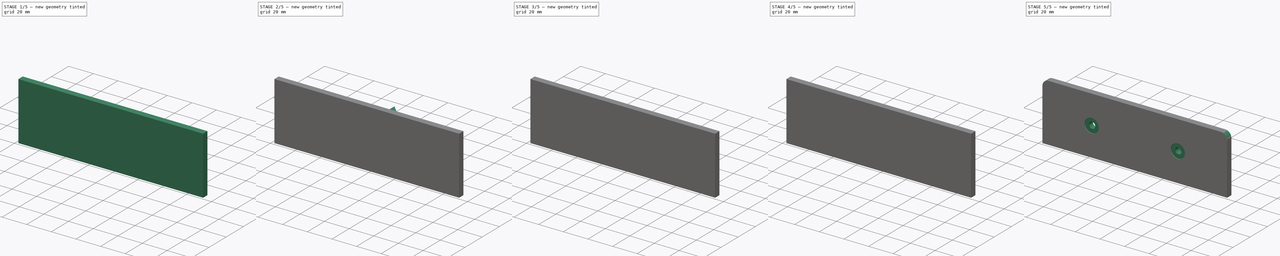
[diagram: build sequence overview — one tinted view per stage of 5, left to right]
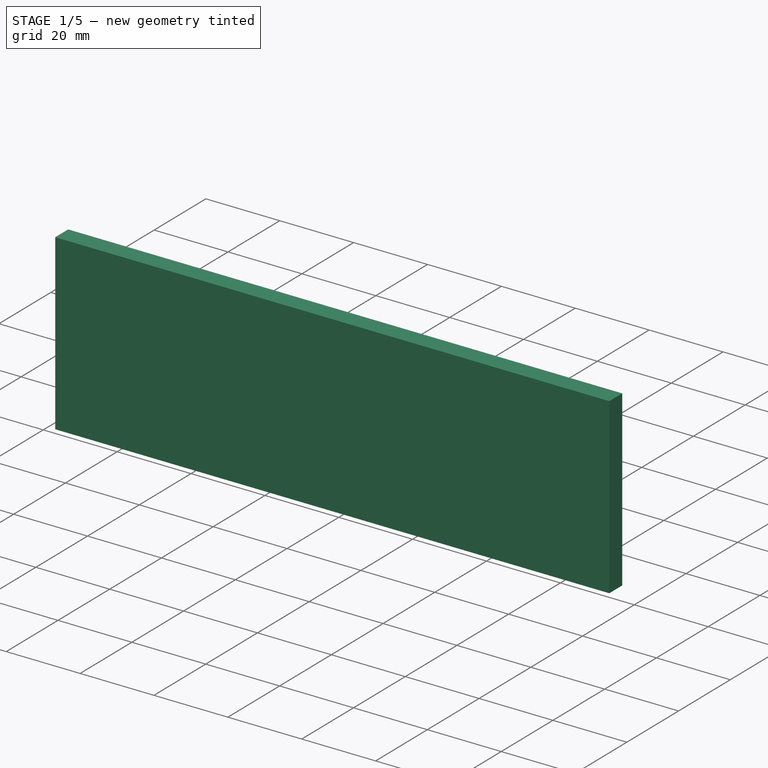
[diagram: stage 1 of 5 — iso view after this stage's code; geometry added in this stage tinted green]
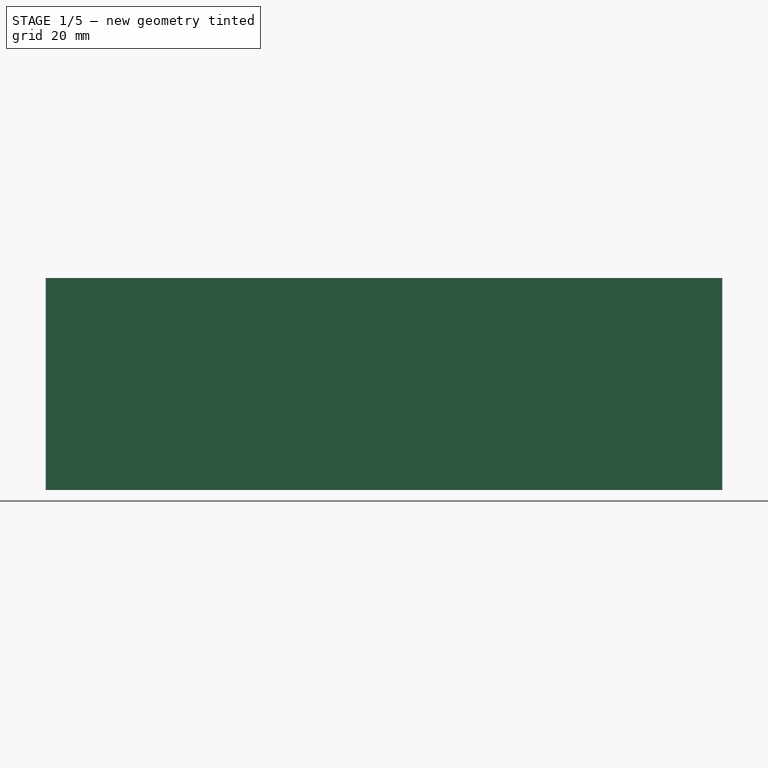
[diagram: stage 1 of 5 — front view after this stage's code; geometry added in this stage tinted green]
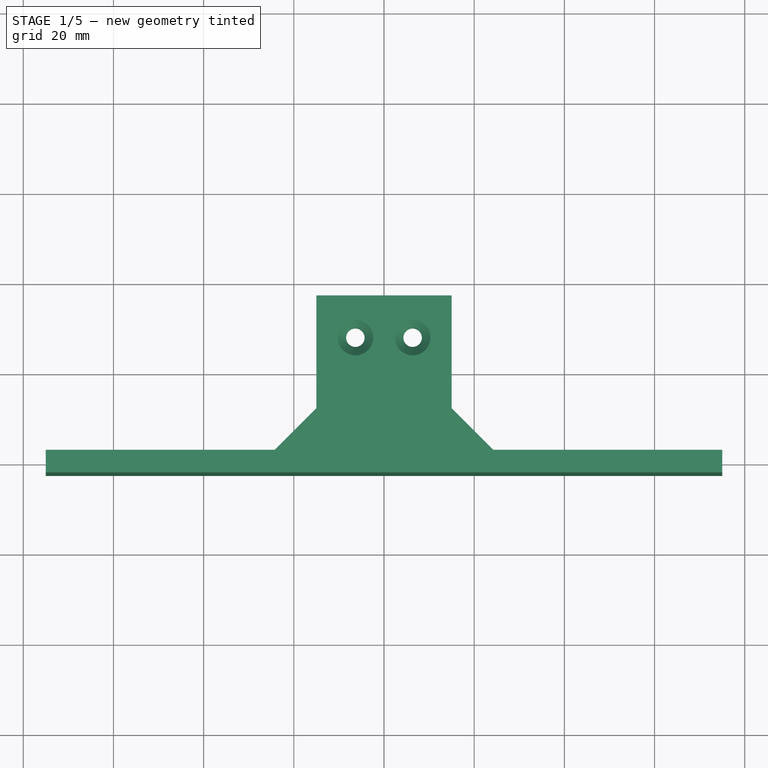
[diagram: stage 1 of 5 — top view after this stage's code; geometry added in this stage tinted green]
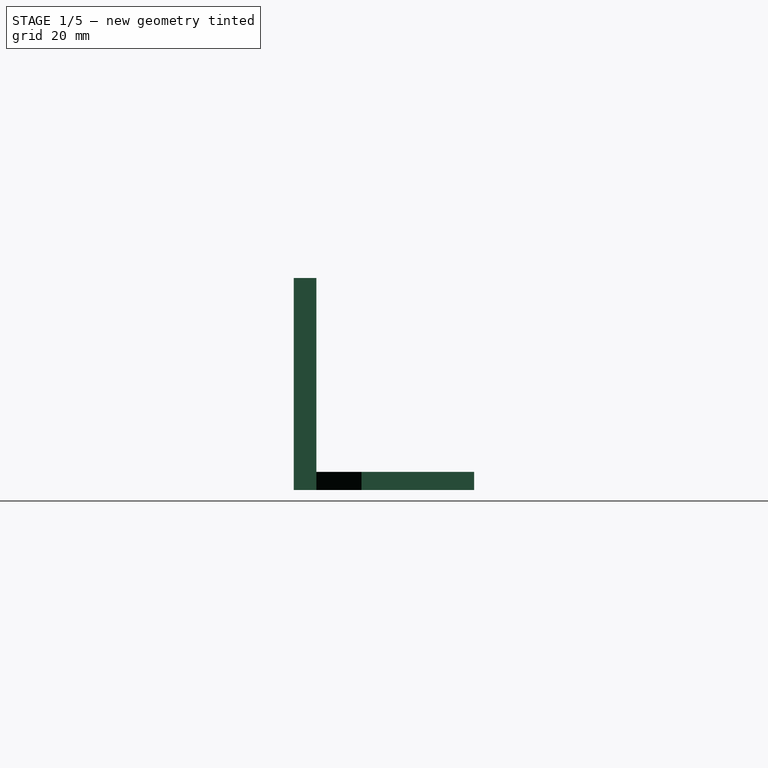
[diagram: stage 1 of 5 — right view after this stage's code; geometry added in this stage tinted green]
FCSTD DOCUMENT  (FreeCAD 0.18.3R)
Label: bumper
License: All rights reserved
LicenseURL: http://en.wikipedia.org/wiki/All_rights_reserved
objects: Sketcher::SketchObject×11, PartDesign::Pad×7, PartDesign::Pocket×7, PartDesign::Chamfer×7, PartDesign::Fillet×2, PartDesign::Body×1
note: 49 computed .brp shape members not serialized (recipe doc carries the construction recipe); baked Part::Feature solids carry a one-line shape summary decoded from their .brp

FEATURE [Sketcher::SketchObject] Sketch
  MapMode = 5
  Support = -> [XY_Plane]
  sketch-geometry (4):
    g0: LineSegment StartX=-75 StartY=2.5 StartZ=0 EndX=75 EndY=2.5 EndZ=0
    g1: LineSegment StartX=75 StartY=2.5 StartZ=0 EndX=75 EndY=-2.5 EndZ=0
    g2: LineSegment StartX=75 StartY=-2.5 StartZ=0 EndX=-75 EndY=-2.5 EndZ=0
    g3: LineSegment StartX=-75 StartY=-2.5 StartZ=0 EndX=-75 EndY=2.5 EndZ=0
  constraints (10):
    c: Coincident(g0,g1)
    c: Coincident(g1,g2)
    c: Coincident(g2,g3)
    c: Coincident(g3,g0)
    c: Horizontal(g2)
    c: Vertical(g3)
    c: Symmetric(g1,g0,g-1)
    c: Symmetric(g0,g0,g-2)
    c: DistanceY(g1,g1) = 5
    c: DistanceX(g0,g0) = 150
FEATURE [PartDesign::Pad] Pad
  Length = 47
  Length2 = 100
  Profile = -> Sketch
  Type = 0
FEATURE [Sketcher::SketchObject] Sketch001
  MapMode = 5
  Placement = pos=(0,2.5,0) rot=(0,0.707107,0.707107;3.14159rad)
  Support = -> [Pad]
  sketch-geometry (4):
    g0: LineSegment StartX=-15 StartY=4 StartZ=0 EndX=15 EndY=4 EndZ=0
    g1: LineSegment StartX=15 StartY=4 StartZ=0 EndX=15 EndY=0 EndZ=0
    g2: LineSegment StartX=15 StartY=0 StartZ=0 EndX=-15 EndY=2e-16 EndZ=0
    g3: LineSegment StartX=-15 StartY=2e-16 StartZ=0 EndX=-15 EndY=4 EndZ=0
  constraints (11):
    c: Coincident(g0,g1)
    c: Coincident(g1,g2)
    c: Coincident(g2,g3)
    c: Coincident(g3,g0)
    c: Horizontal(g0)
    c: Vertical(g1)
    c: Vertical(g3)
    c: Symmetric(g1,g2,g-2)
    c: PointOnObject(g1,g-1)
    c: DistanceX(g0,g0) = 30
    c: DistanceY(g1,g1) = 4
FEATURE [PartDesign::Pad] Pad001
  BaseFeature = -> Pad
  Length = 35
  Length2 = 100
  Profile = -> Sketch001
  Type = 0
FEATURE [Sketcher::SketchObject] Sketch002
  ExternalGeometry = -> [Pad001]
  MapMode = 5
  Placement = pos=(0,0,7e-16) rot=(1,0,0;3.14159rad)
  Support = -> [Pad001]
  sketch-geometry (2):
    g0: Circle CenterX=6.35 CenterY=-28.15 CenterZ=0 NormalX=0 NormalY=0 NormalZ=1 AngleXU=0 Radius=2.05
    g1: Circle CenterX=-6.35 CenterY=-28.15 CenterZ=0 NormalX=0 NormalY=0 NormalZ=1 AngleXU=0 Radius=2.05
  constraints (5):
    c: Radius(g1) = 2.05
    c: Equal(g0,g1)
    c: Symmetric(g0,g1,g-2)
    c: DistanceX(g1,g0) = 12.7
    c: Distance(g0,g-3) = 30.65
FEATURE [PartDesign::Pocket] Pocket
  BaseFeature = -> Pad001
  Length = 5
  Length2 = 100
  Profile = -> Sketch002
  Type = 1
FEATURE [PartDesign::Chamfer] Chamfer
  Base = -> Pocket [Edge18,Edge19]
  BaseFeature = -> Pocket
  Size = 1.9
FEATURE [PartDesign::Chamfer] Chamfer001
  Base = -> Chamfer [Edge13,Edge10]
  BaseFeature = -> Chamfer
  Size = 10
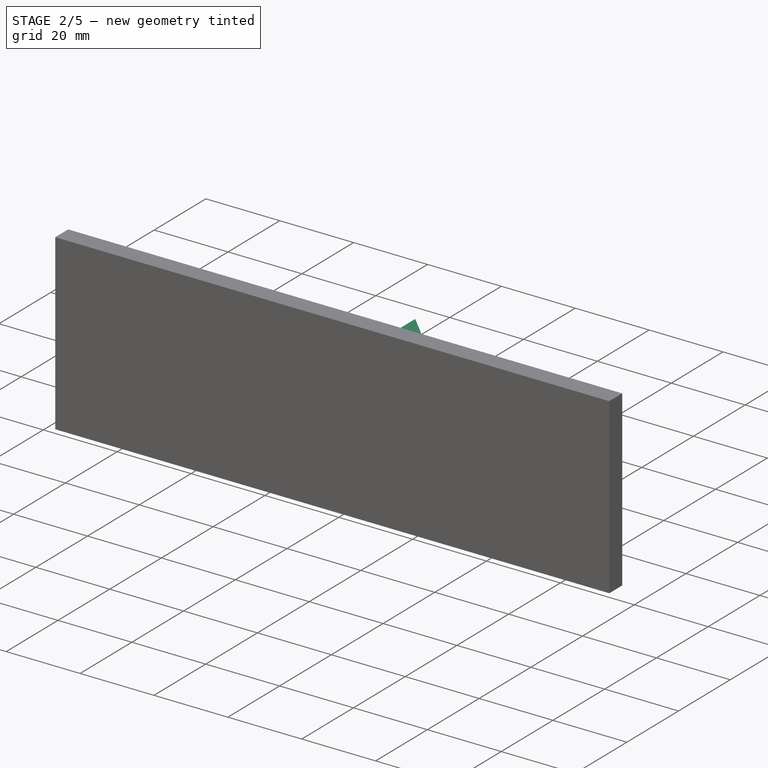
[diagram: stage 2 of 5 — iso view after this stage's code; geometry added in this stage tinted green]
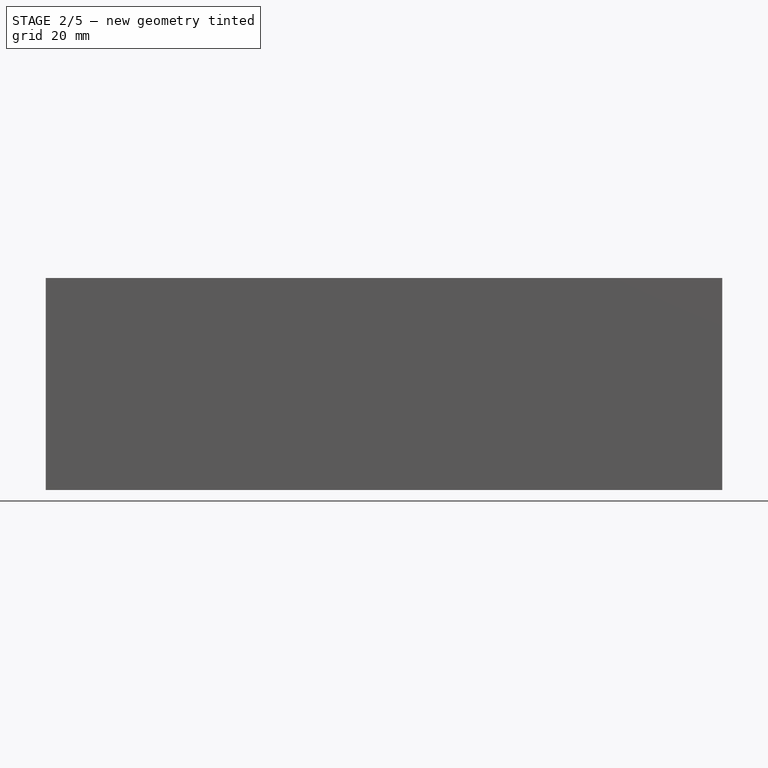
[diagram: stage 2 of 5 — front view after this stage's code; geometry added in this stage tinted green]
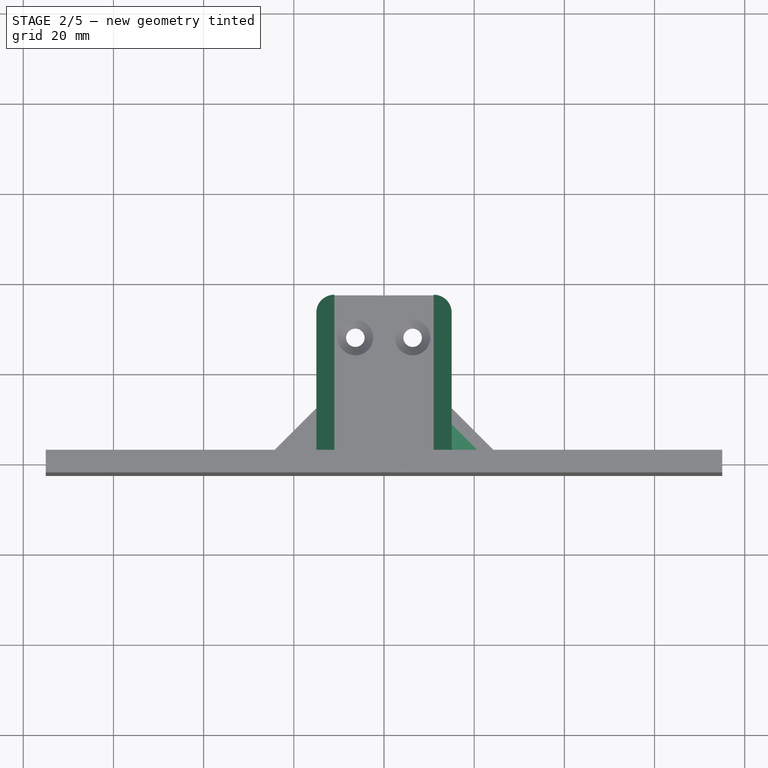
[diagram: stage 2 of 5 — top view after this stage's code; geometry added in this stage tinted green]
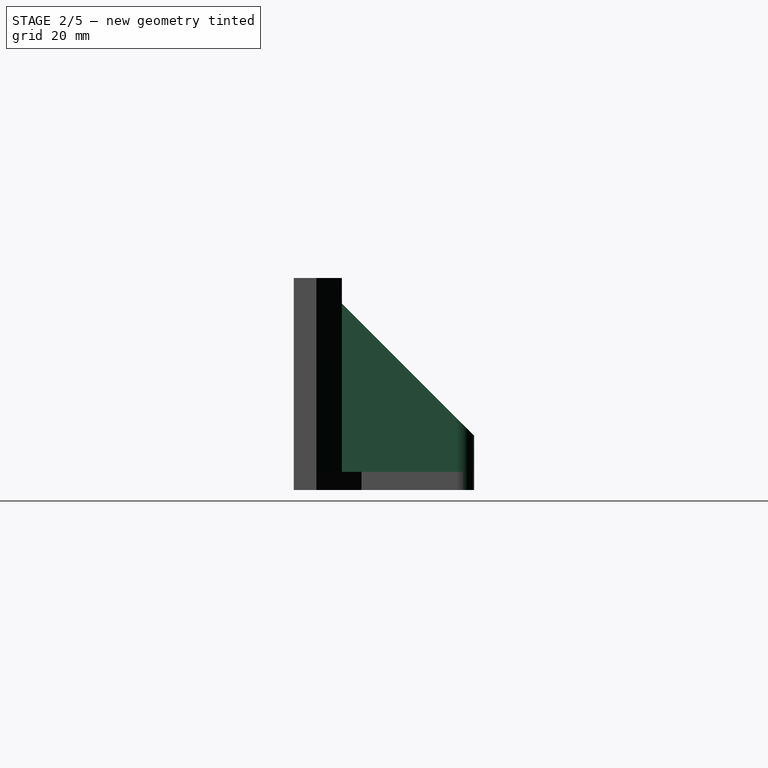
[diagram: stage 2 of 5 — right view after this stage's code; geometry added in this stage tinted green]
FEATURE [Sketcher::SketchObject] Sketch003
  ExternalGeometry = -> [Chamfer001]
  MapMode = 5
  Placement = pos=(0,9e-16,4) rot=(0,0,1;0rad)
  Support = -> [Chamfer001]
  sketch-geometry (8):
    g0: LineSegment StartX=-11 StartY=2.5 StartZ=0 EndX=-15 EndY=2.5 EndZ=0
    g1: LineSegment StartX=-15 StartY=2.5 StartZ=0 EndX=-15 EndY=37.5 EndZ=0
    g2: LineSegment StartX=-15 StartY=37.5 StartZ=0 EndX=-11 EndY=37.5 EndZ=0
    g3: LineSegment StartX=-11 StartY=37.5 StartZ=0 EndX=-11 EndY=2.5 EndZ=0
    g4: LineSegment StartX=15 StartY=2.5 StartZ=0 EndX=11 EndY=2.5 EndZ=0
    g5: LineSegment StartX=11 StartY=2.5 StartZ=0 EndX=11 EndY=37.5 EndZ=0
    g6: LineSegment StartX=11 StartY=37.5 StartZ=0 EndX=15 EndY=37.5 EndZ=0
    g7: LineSegment StartX=15 StartY=37.5 StartZ=0 EndX=15 EndY=2.5 EndZ=0
  constraints (22):
    c: Coincident(g0,g1)
    c: Coincident(g1,g2)
    c: Coincident(g2,g3)
    c: Coincident(g3,g0)
    c: Horizontal(g0)
    c: Horizontal(g2)
    c: Vertical(g1)
    c: Vertical(g3)
    c: Coincident(g4,g5)
    c: Coincident(g5,g6)
    c: Coincident(g6,g7)
    c: Coincident(g7,g4)
    c: Horizontal(g4)
    c: Horizontal(g6)
    c: Vertical(g5)
    c: Vertical(g7)
    c: Coincident(g1,g-3)
    c: Coincident(g6,g-4)
    c: Equal(g6,g2)
    c: Equal(g3,g5)
    c: DistanceX(g2,g2) = 4
    c: PointOnObject(g0,g-5)
FEATURE [PartDesign::Pad] Pad002
  BaseFeature = -> Chamfer001
  Length = 43
  Length2 = 100
  Profile = -> Sketch003
  Type = 0
FEATURE [PartDesign::Chamfer] Chamfer002
  Base = -> Pad002 [Edge38,Edge56]
  BaseFeature = -> Pad002
  Size = 34.99
FEATURE [PartDesign::Fillet] Fillet
  Base = -> Chamfer002 [Edge1,Edge14,Edge53,Edge27]
  BaseFeature = -> Chamfer002
  Radius = 3.99
FEATURE [Sketcher::SketchObject] Sketch004
  ExternalGeometry = -> [Fillet]
  MapMode = 5
  Placement = pos=(0,9e-16,4) rot=(0,0,1;0rad)
  Support = -> [Fillet]
  sketch-geometry (3):
    g0: LineSegment StartX=20.6569 StartY=2.5 StartZ=0 EndX=15 EndY=8.15685 EndZ=0
    g1: LineSegment StartX=15 StartY=2.5 StartZ=0 EndX=15 EndY=8.15685 EndZ=0
    g2: LineSegment StartX=15 StartY=2.5 StartZ=0 EndX=20.6569 EndY=2.5 EndZ=0
  constraints (8):
    c: Vertical(g1)
    c: Coincident(g1,g2)
    c: Coincident(g-3,g1)
    c: Equal(g2,g1)
    c: Coincident(g2,g0)
    c: Coincident(g0,g1)
    c: PointOnObject(g0,g-4)
    c: Distance(g1,g0) = 4
FEATURE [PartDesign::Pad] Pad003
  BaseFeature = -> Fillet
  Length = 43
  Length2 = 100
  Profile = -> Sketch004
  Type = 0
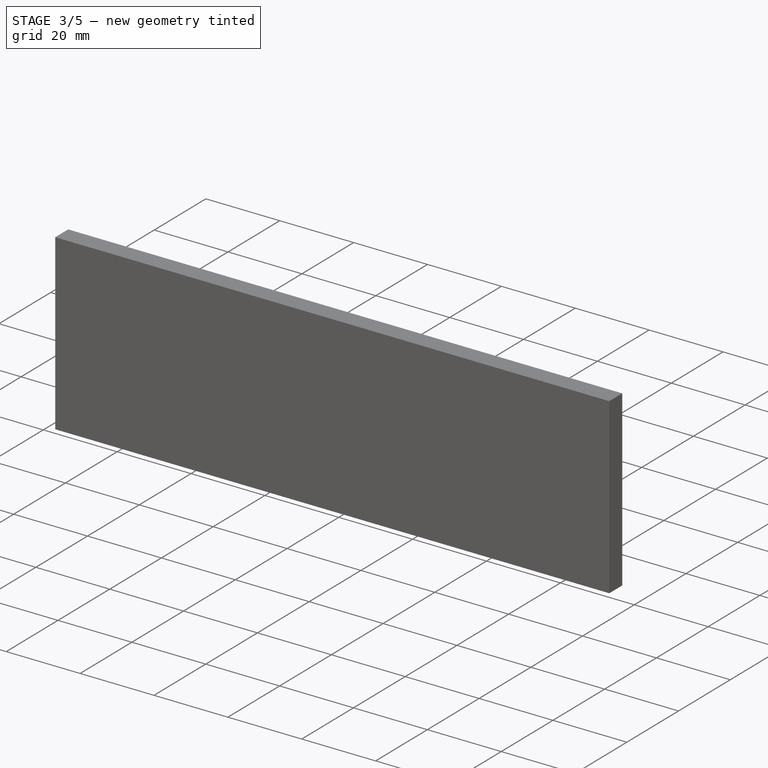
[diagram: stage 3 of 5 — iso view after this stage's code; geometry added in this stage tinted green]
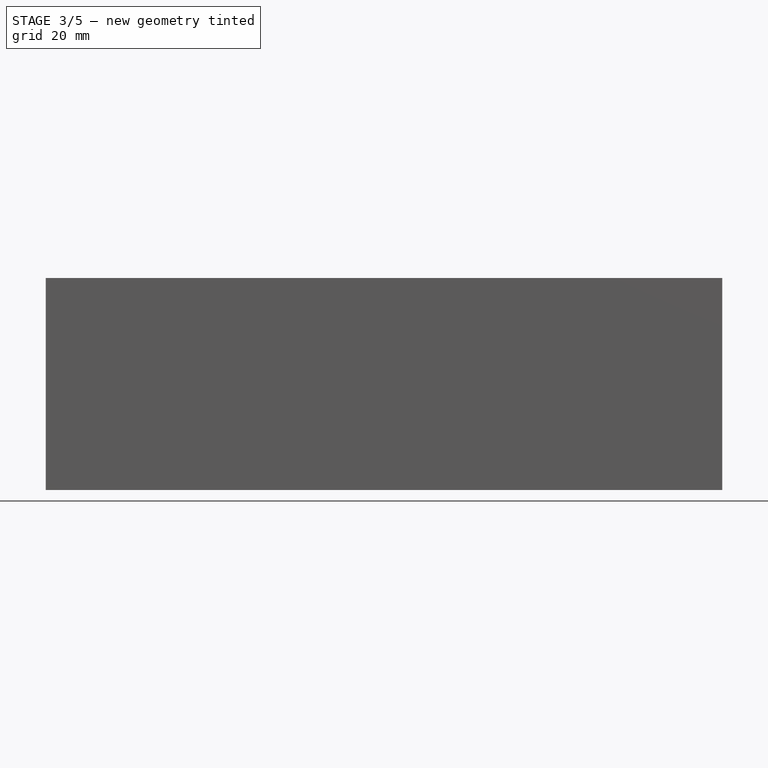
[diagram: stage 3 of 5 — front view after this stage's code; geometry added in this stage tinted green]
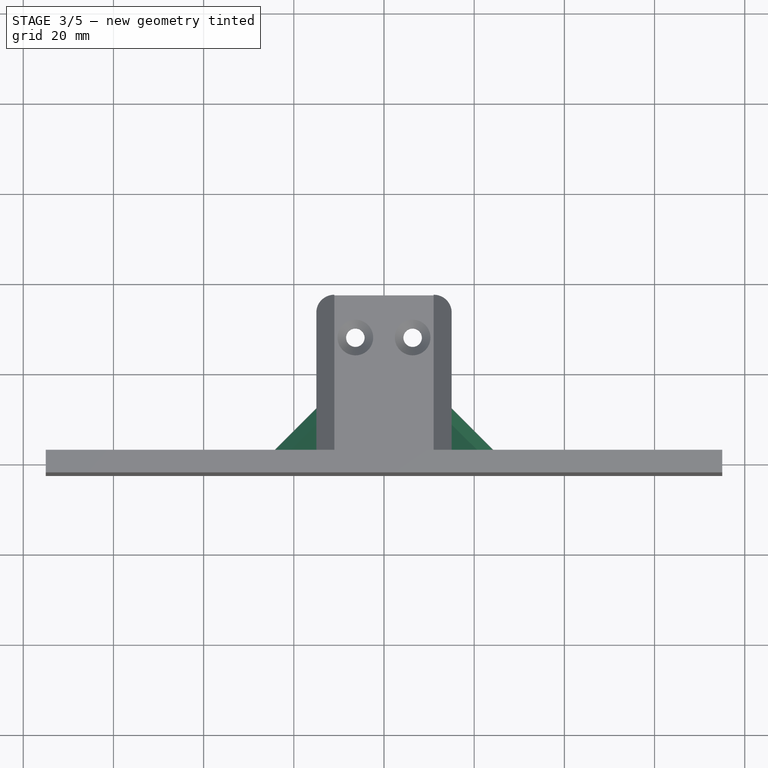
[diagram: stage 3 of 5 — top view after this stage's code; geometry added in this stage tinted green]
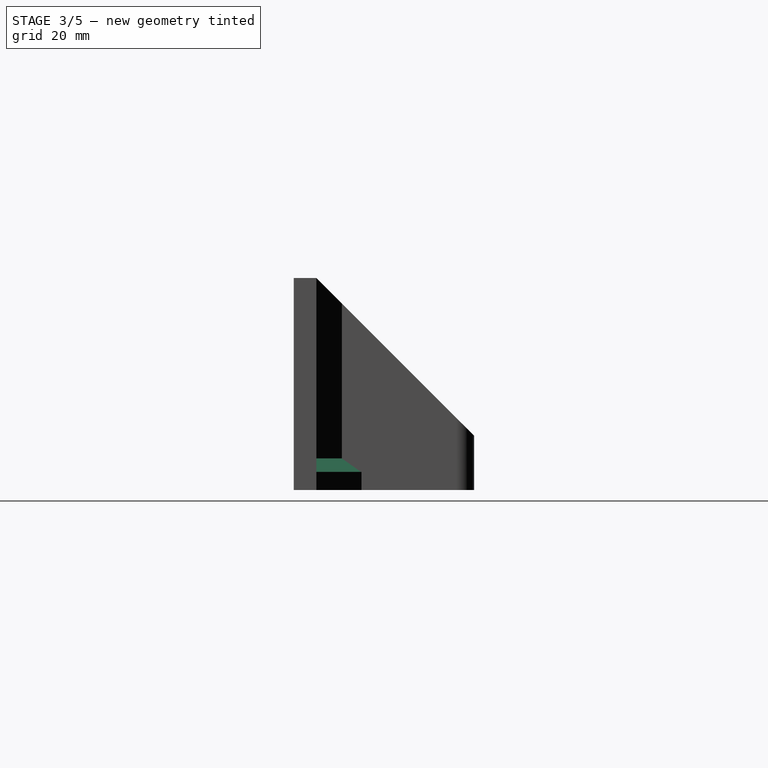
[diagram: stage 3 of 5 — right view after this stage's code; geometry added in this stage tinted green]
FEATURE [PartDesign::Chamfer] Chamfer003
  Base = -> Pad003 [Edge14]
  BaseFeature = -> Pad003
  Size = 3
FEATURE [PartDesign::Pocket] Pocket001
  BaseFeature = -> Chamfer003
  Length = 5
  Length2 = 100
  Profile = -> Chamfer003 [Face13]
  Type = 1
FEATURE [Sketcher::SketchObject] Sketch005
  ExternalGeometry = -> [Pocket001]
  MapMode = 5
  Placement = pos=(0,9e-16,4) rot=(0,0,1;0rad)
  Support = -> [Pocket001]
  sketch-geometry (3):
    g0: LineSegment StartX=-15 StartY=2.5 StartZ=0 EndX=-15 EndY=8.15685 EndZ=0
    g1: LineSegment StartX=-15 StartY=8.15685 StartZ=0 EndX=-20.6569 EndY=2.5 EndZ=0
    g2: LineSegment StartX=-20.6569 StartY=2.5 StartZ=0 EndX=-15 EndY=2.5 EndZ=0
  constraints (8):
    c: Vertical(g0)
    c: Coincident(g2,g0)
    c: Coincident(g0,g-4)
    c: Equal(g2,g0)
    c: Coincident(g1,g2)
    c: PointOnObject(g1,g-3)
    c: Coincident(g1,g0)
    c: Distance(g0,g1) = 4
FEATURE [PartDesign::Pad] Pad004
  BaseFeature = -> Pocket001
  Length = 43
  Length2 = 100
  Profile = -> Sketch005
  Type = 0
FEATURE [PartDesign::Chamfer] Chamfer004
  Base = -> Pad004 [Edge95]
  BaseFeature = -> Pad004
  Size = 3
FEATURE [PartDesign::Pocket] Pocket002
  BaseFeature = -> Chamfer004
  Length = 5
  Length2 = 100
  Profile = -> Chamfer004 [Face12]
  Type = 1
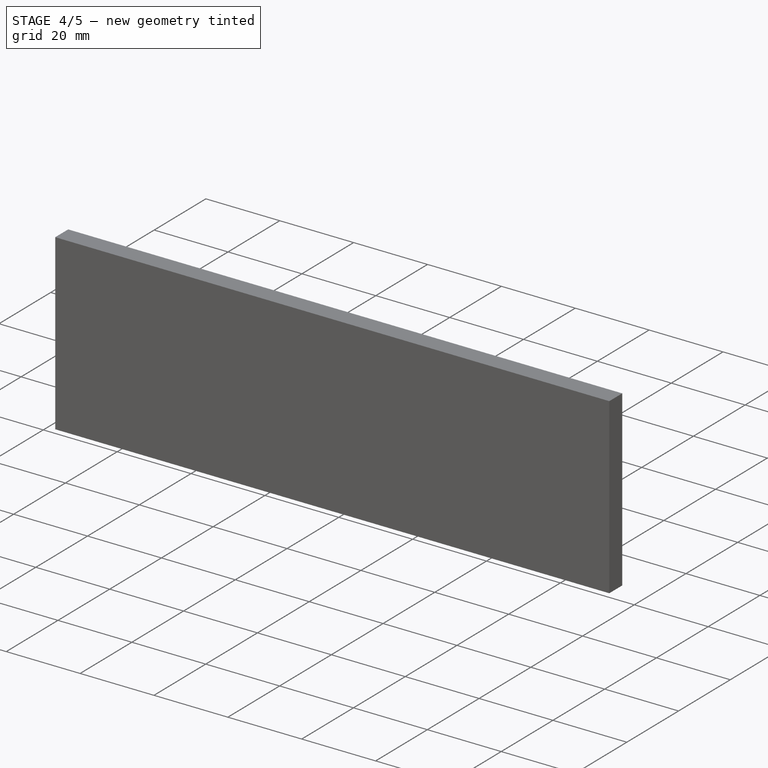
[diagram: stage 4 of 5 — iso view after this stage's code; geometry added in this stage tinted green]
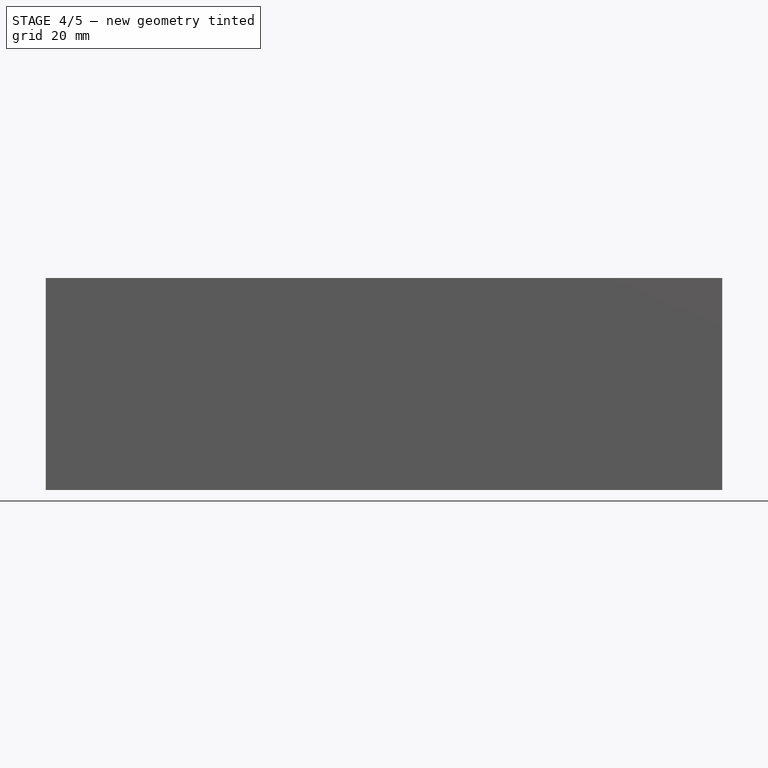
[diagram: stage 4 of 5 — front view after this stage's code; geometry added in this stage tinted green]
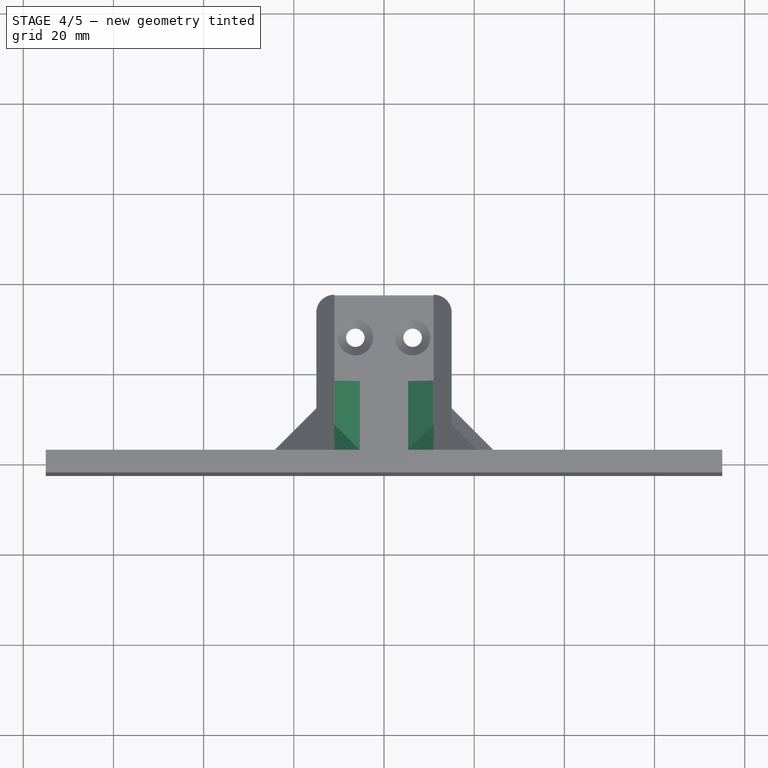
[diagram: stage 4 of 5 — top view after this stage's code; geometry added in this stage tinted green]
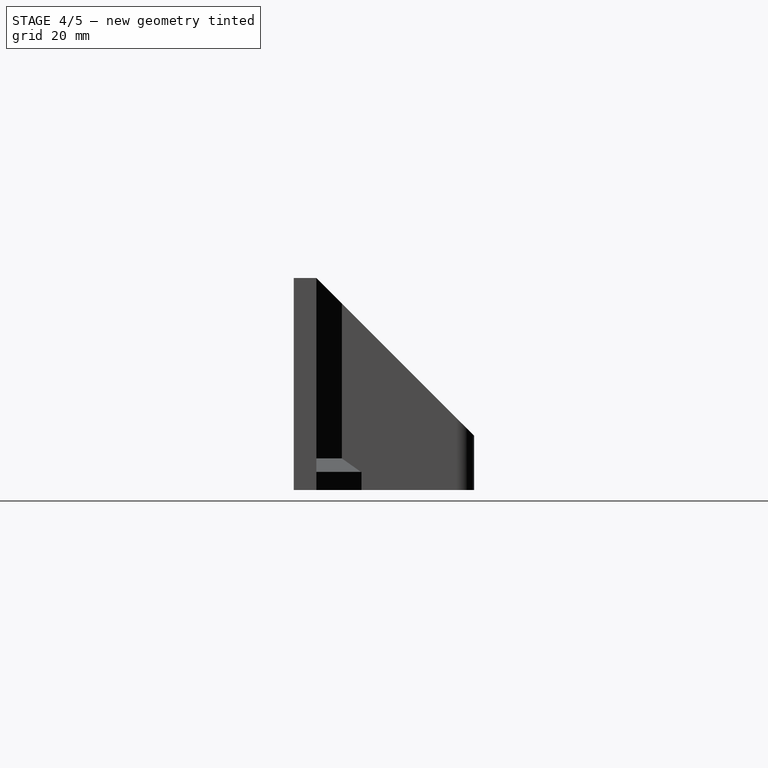
[diagram: stage 4 of 5 — right view after this stage's code; geometry added in this stage tinted green]
FEATURE [Sketcher::SketchObject] Sketch006
  ExternalGeometry = -> [Pocket002]
  MapMode = 5
  Placement = pos=(0,9e-16,4) rot=(0,0,1;0rad)
  Support = -> [Pocket002]
  sketch-geometry (6):
    g0: LineSegment StartX=11 StartY=2.5 StartZ=0 EndX=11 EndY=8.15685 EndZ=0
    g1: LineSegment StartX=5.34315 StartY=2.5 StartZ=0 EndX=11 EndY=8.15685 EndZ=0
    g2: LineSegment StartX=11 StartY=2.5 StartZ=0 EndX=5.34315 EndY=2.5 EndZ=0
    g3: LineSegment StartX=-11 StartY=2.5 StartZ=0 EndX=-11 EndY=8.15685 EndZ=0
    g4: LineSegment StartX=-11 StartY=8.15685 StartZ=0 EndX=-5.34315 EndY=2.5 EndZ=0
    g5: LineSegment StartX=-5.34315 StartY=2.5 StartZ=0 EndX=-11 EndY=2.5 EndZ=0
  constraints (16):
    c: Coincident(g3,g5)
    c: Coincident(g5,g4)
    c: Coincident(g3,g4)
    c: Coincident(g3,g-4)
    c: Equal(g5,g3)
    c: Vertical(g3)
    c: Horizontal(g5)
    c: Distance(g3,g4) = 4
    c: Coincident(g0,g2)
    c: Coincident(g2,g1)
    c: Coincident(g1,g0)
    c: Equal(g2,g0)
    c: Vertical(g0)
    c: Horizontal(g2)
    c: Coincident(g0,g-5)
    c: Equal(g1,g4)
FEATURE [PartDesign::Pad] Pad005
  BaseFeature = -> Pocket002
  Length = 43
  Length2 = 100
  Profile = -> Sketch006
  Type = 0
FEATURE [PartDesign::Pocket] Pocket003
  BaseFeature = -> Pad005
  Length = 5
  Length2 = 100
  Profile = -> Pad005 [Face39]
  Type = 1
FEATURE [Sketcher::SketchObject] Sketch007
  ExternalGeometry = -> [Pocket003]
  MapMode = 5
  Placement = pos=(0,9e-16,4) rot=(0,0,1;0rad)
  Support = -> [Pocket003]
  sketch-geometry (8):
    g0: LineSegment StartX=-11 StartY=18.5 StartZ=0 EndX=-5.34315 EndY=18.5 EndZ=0
    g1: LineSegment StartX=-5.34315 StartY=18.5 StartZ=0 EndX=-5.34315 EndY=2.5 EndZ=0
    g2: LineSegment StartX=-11 StartY=18.5 StartZ=0 EndX=-11 EndY=8.15685 EndZ=0
    g3: LineSegment StartX=-11 StartY=8.15685 StartZ=0 EndX=-5.34315 EndY=2.5 EndZ=0
    g4: LineSegment StartX=11 StartY=18.5 StartZ=0 EndX=5.34315 EndY=18.5 EndZ=0
    g5: LineSegment StartX=5.34315 StartY=18.5 StartZ=0 EndX=5.34315 EndY=2.5 EndZ=0
    g6: LineSegment StartX=11 StartY=18.5 StartZ=0 EndX=11 EndY=8.15685 EndZ=0
    g7: LineSegment StartX=11 StartY=8.15685 StartZ=0 EndX=5.34315 EndY=2.5 EndZ=0
  constraints (20):
    c: Horizontal(g0)
    c: Vertical(g1)
    c: Coincident(g0,g1)
    c: PointOnObject(g0,g-6)
    c: Coincident(g-5,g1)
    c: Coincident(g2,g0)
    c: Coincident(g2,g-6)
    c: Coincident(g3,g2)
    c: Coincident(g1,g3)
    c: DistanceY(g1,g1) = 16
    c: Coincident(g5,g4)
    c: Vertical(g5)
    c: Horizontal(g4)
    c: Coincident(g5,g-4)
    c: PointOnObject(g4,g-3)
    c: Equal(g5,g1)
    c: Coincident(g6,g4)
    c: Coincident(g6,g-4)
    c: Coincident(g7,g6)
    c: Coincident(g7,g5)
FEATURE [PartDesign::Pad] Pad006
  BaseFeature = -> Pocket003
  Length = 5.65
  Length2 = 100
  Profile = -> Sketch007
  Type = 0
FEATURE [PartDesign::Chamfer] Chamfer005
  Base = -> Pad006 [Edge106,Edge112]
  BaseFeature = -> Pad006
  Size = 5.6
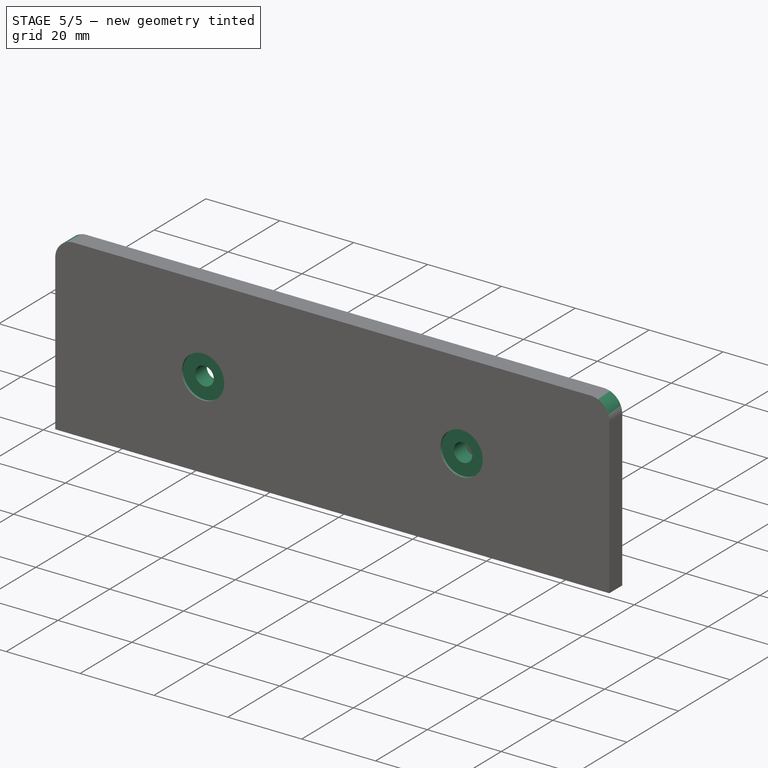
[diagram: stage 5 of 5 — iso view after this stage's code; geometry added in this stage tinted green]
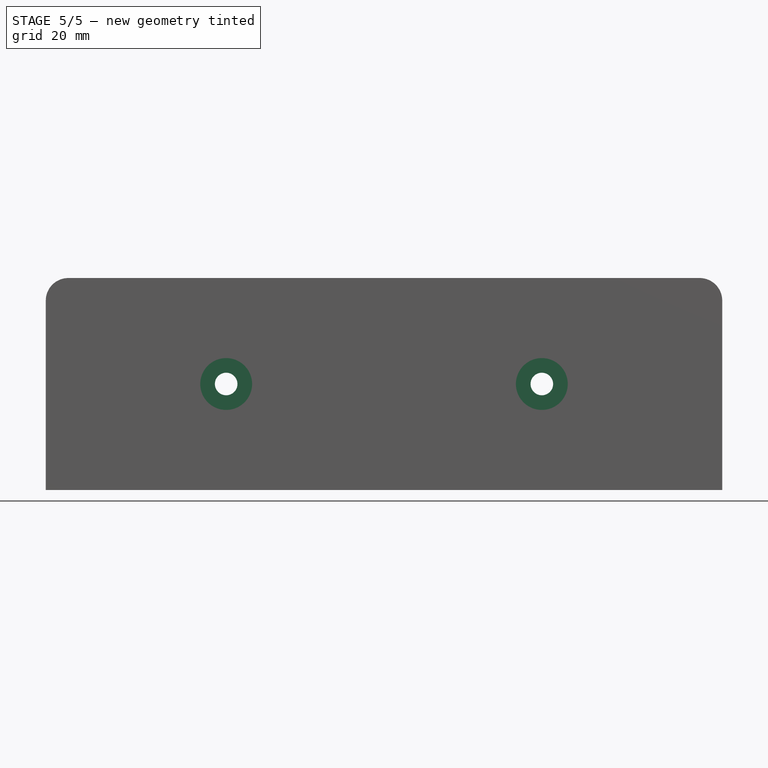
[diagram: stage 5 of 5 — front view after this stage's code; geometry added in this stage tinted green]
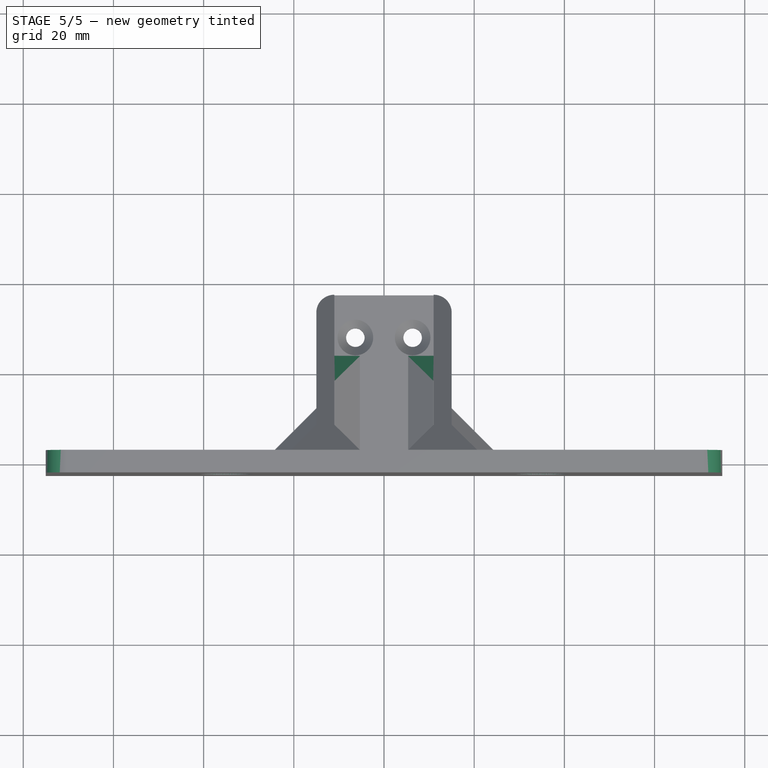
[diagram: stage 5 of 5 — top view after this stage's code; geometry added in this stage tinted green]
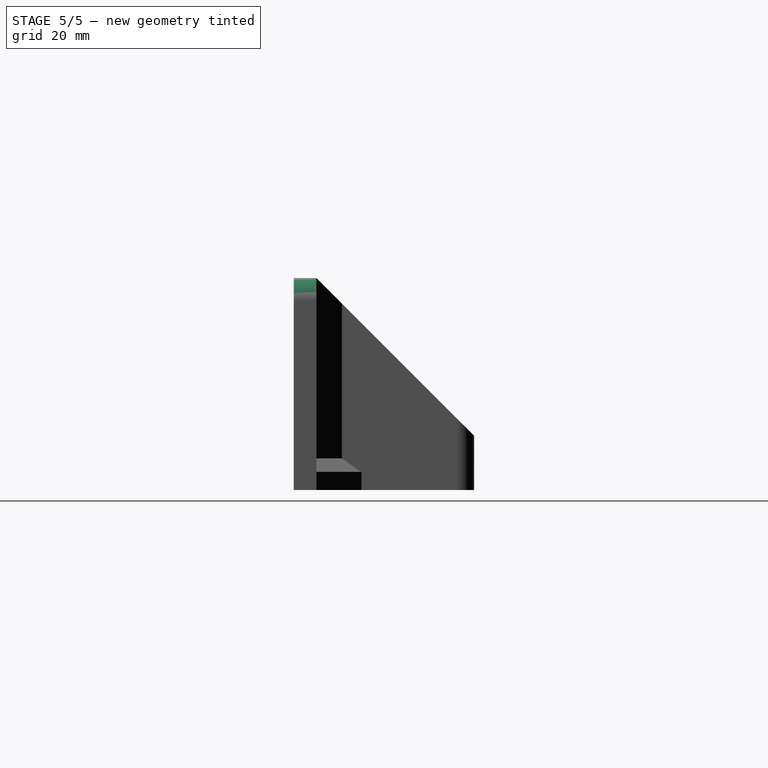
[diagram: stage 5 of 5 — right view after this stage's code; geometry added in this stage tinted green]
FEATURE [PartDesign::Chamfer] Chamfer006
  Base = -> Chamfer005 [Edge22,Edge18]
  BaseFeature = -> Chamfer005
  Size = 5.6
FEATURE [Sketcher::SketchObject] Sketch008
  ExternalGeometry = -> [Chamfer006]
  MapMode = 5
  Placement = pos=(0,2.5,0) rot=(0,0.707107,0.707107;3.14159rad)
  Support = -> [Chamfer006]
  sketch-geometry (5):
    g0: LineSegment [constr] StartX=-75 StartY=23.5 StartZ=0 EndX=-35 EndY=23.5 EndZ=0
    g1: LineSegment [constr] StartX=-35 StartY=23.5 StartZ=0 EndX=-20.6569 EndY=23.5 EndZ=0
    g2: LineSegment [constr] StartX=-35 StartY=47 StartZ=0 EndX=-35 EndY=23.5 EndZ=0
    g3: LineSegment [constr] StartX=-35 StartY=23.5 StartZ=0 EndX=-35 EndY=0 EndZ=0
    g4: Circle CenterX=-35 CenterY=23.5 CenterZ=0 NormalX=0 NormalY=0 NormalZ=1 AngleXU=0 Radius=2.5
  constraints (15):
    c: Horizontal(g0)
    c: Horizontal(g1)
    c: PointOnObject(g1,g-5)
    c: PointOnObject(g0,g-4)
    c: Coincident(g1,g0)
    c: Vertical(g2)
    c: Vertical(g3)
    c: PointOnObject(g2,g-3)
    c: PointOnObject(g3,g-6)
    c: Coincident(g3,g0)
    c: Coincident(g3,g2)
    c: Equal(g3,g2)
    c: Coincident(g4,g0)
    c: Diameter(g4) = 5
    c: DistanceX(g0,g0) = 40
FEATURE [PartDesign::Pocket] Pocket004
  BaseFeature = -> Chamfer006
  Length = 5
  Length2 = 100
  Profile = -> Sketch008
  Type = 0
FEATURE [Sketcher::SketchObject] Sketch009
  ExternalGeometry = -> [Pocket004]
  MapMode = 5
  Placement = pos=(0,2.5,0) rot=(0,0.707107,0.707107;3.14159rad)
  Support = -> [Pocket004]
  sketch-geometry (4):
    g0: LineSegment [constr] StartX=35 StartY=47 StartZ=0 EndX=35 EndY=23.5 EndZ=0
    g1: LineSegment [constr] StartX=35 StartY=23.5 StartZ=0 EndX=35 EndY=0 EndZ=0
    g2: LineSegment [constr] StartX=35 StartY=23.5 StartZ=0 EndX=75 EndY=23.5 EndZ=0
    g3: Circle CenterX=35 CenterY=23.5 CenterZ=0 NormalX=0 NormalY=0 NormalZ=1 AngleXU=0 Radius=2.5
  constraints (12):
    c: Vertical(g0)
    c: Vertical(g1)
    c: Horizontal(g2)
    c: Coincident(g2,g0)
    c: Coincident(g2,g1)
    c: Equal(g0,g1)
    c: PointOnObject(g0,g-3)
    c: PointOnObject(g1,g-1)
    c: PointOnObject(g2,g-4)
    c: DistanceX(g2,g2) = 40
    c: Coincident(g3,g0)
    c: Diameter(g3) = 5
FEATURE [PartDesign::Pocket] Pocket005
  BaseFeature = -> Pocket004
  Length = 5
  Length2 = 100
  Profile = -> Sketch009
  Type = 0
FEATURE [Sketcher::SketchObject] Sketch010
  ExternalGeometry = -> [Pocket005]
  MapMode = 5
  Placement = pos=(0,-2.5,0) rot=(1,0,0;1.5708rad)
  Support = -> [Pocket005]
  sketch-geometry (2):
    g0: Circle CenterX=-35 CenterY=23.5 CenterZ=0 NormalX=0 NormalY=0 NormalZ=1 AngleXU=0 Radius=5.75
    g1: Circle CenterX=35 CenterY=23.5 CenterZ=0 NormalX=0 NormalY=0 NormalZ=1 AngleXU=0 Radius=5.75
  constraints (4):
    c: Coincident(g0,g-3)
    c: Coincident(g1,g-4)
    c: Equal(g1,g0)
    c: Diameter(g0) = 11.5
FEATURE [PartDesign::Pocket] Pocket006
  BaseFeature = -> Pocket005
  Length = 0.6
  Length2 = 100
  Profile = -> Sketch010
  Type = 0
FEATURE [PartDesign::Fillet] Fillet001
  Base = -> Pocket006 [Edge47,Edge45]
  BaseFeature = -> Pocket006
  Radius = 5
FEATURE [PartDesign::Body] Body
  Group = -> [Sketch,Pad,Sketch001,Pad001,Sketch002,Pocket,Chamfer,Chamfer001,Sketch003,Pad002,Chamfer002,Fillet,Sketch004,Pad003,Chamfer003,Pocket001,Sketch005,Pad004,Chamfer004,Pocket002,Sketch006,Pad005,Pocket003,Sketch007,Pad006,Chamfer005,Chamfer006,Sketch008,Pocket004,Sketch009,Pocket005,Sketch010,Pocket006,Fillet001]
  Origin = -> Origin
  Tip = -> Fillet001
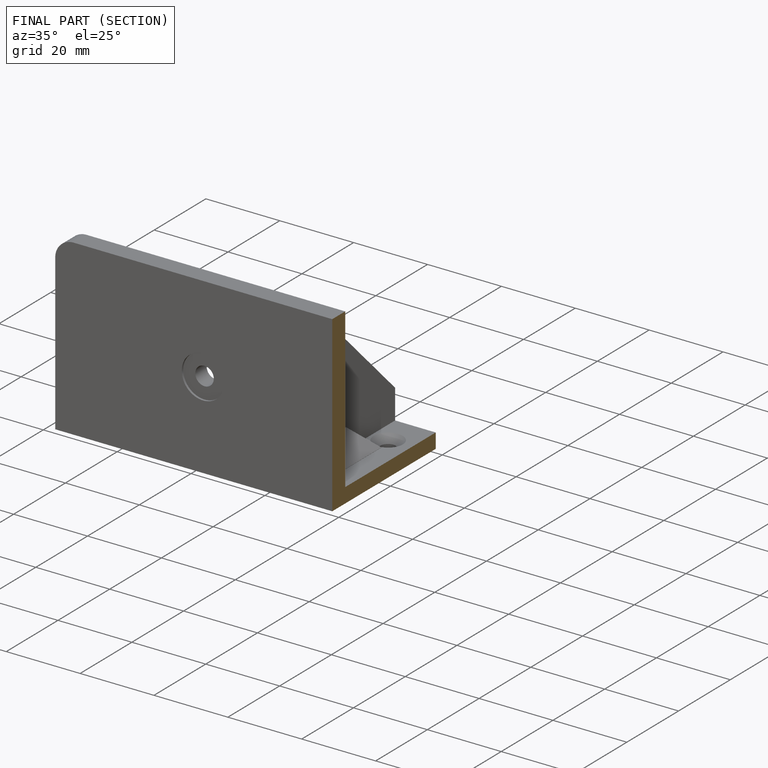
[diagram: finished part — half-section view (interior)]
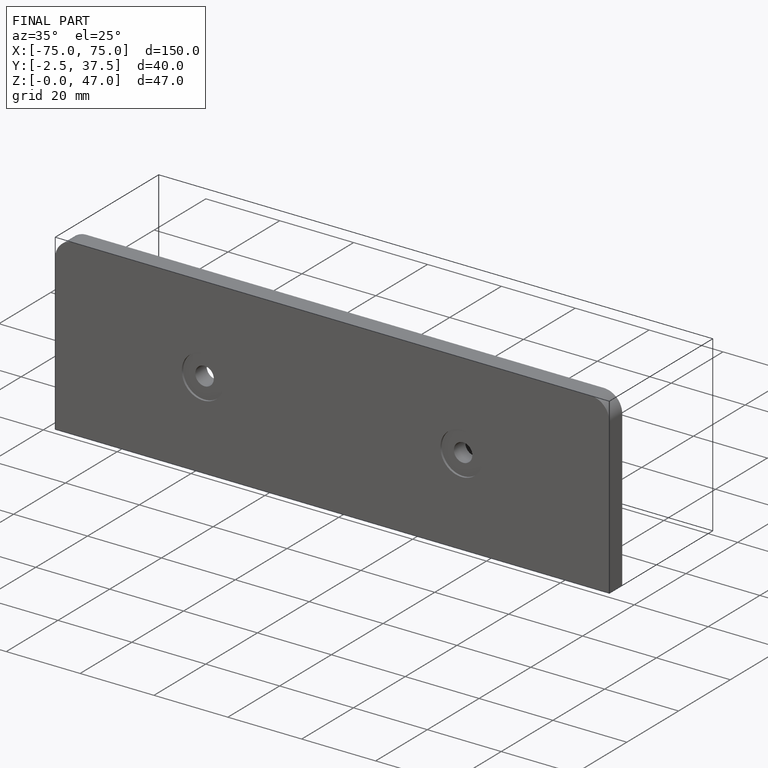
[diagram: finished part — iso view with bounding-box wireframe]
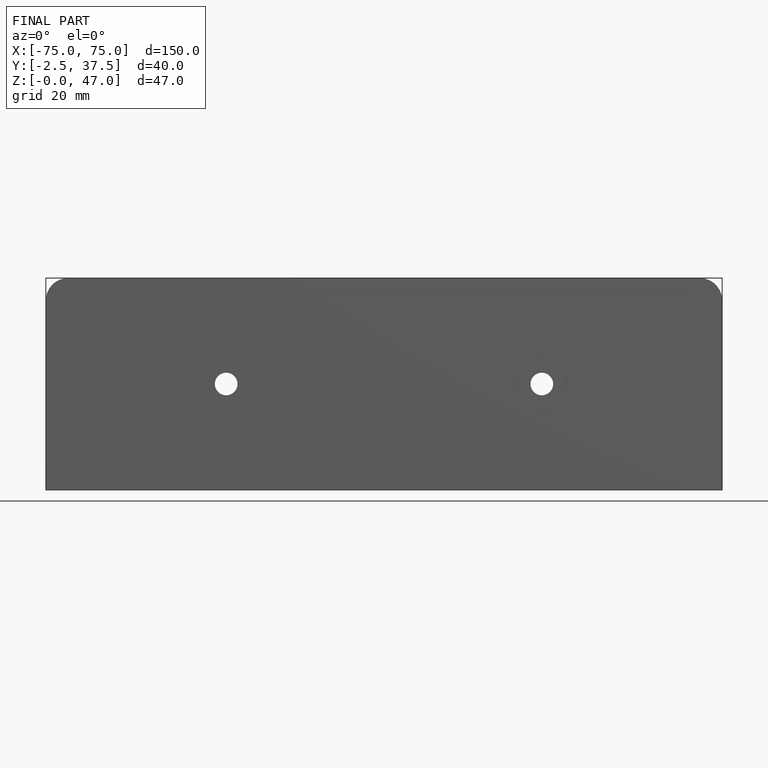
[diagram: finished part — front view with bounding-box wireframe]
